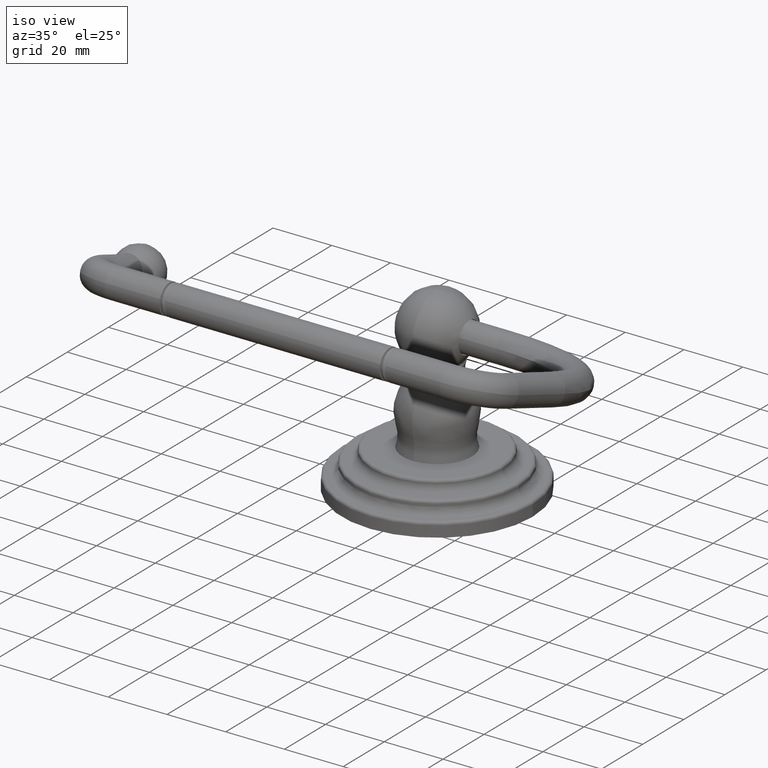
[diagram: clean part render]
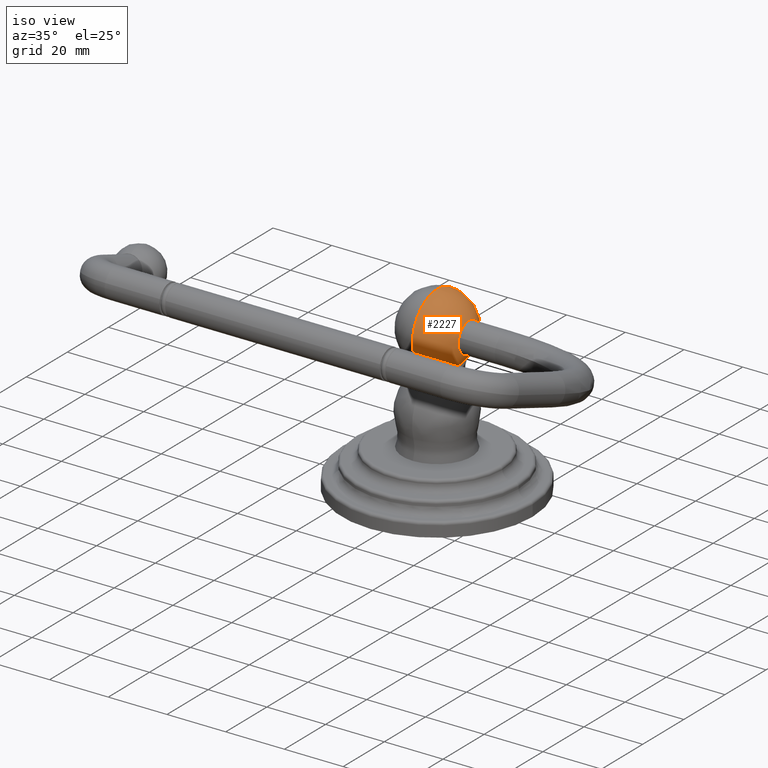
[diagram: same view with one face highlighted and labeled with its STEP entity id]
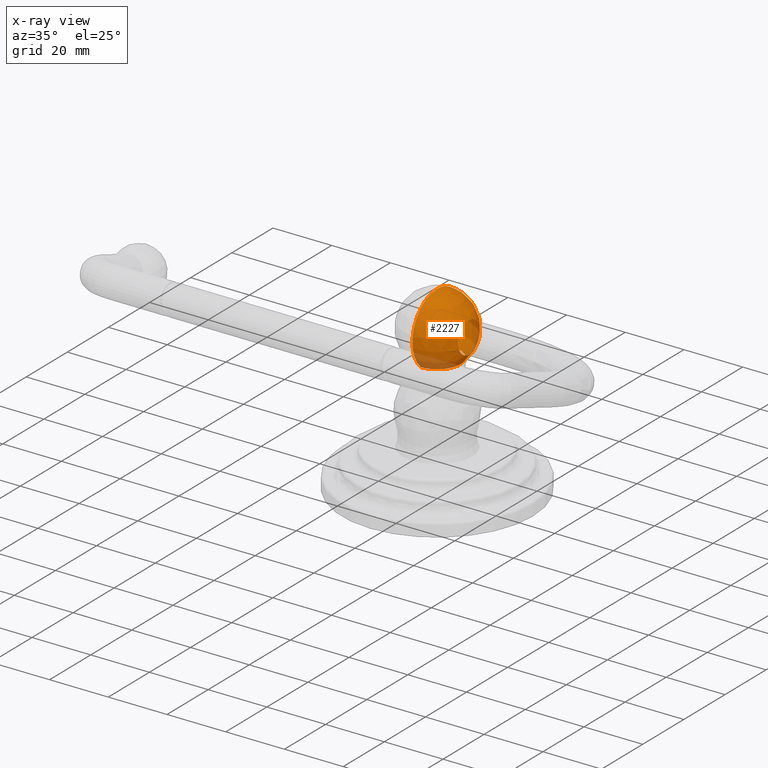
[diagram: x-ray of the same camera — body ghosted, the highlighted face saturated]
A machine part, iso view. The second image highlights one B-rep face of the part: STEP entity #2227.
The next image is the same camera in x-ray: the body ghosted, the highlighted face saturated — about 9% of this face is hidden behind the body in this view.
In plain terms, the highlighted spherical surface has radius 12.065 mm.
Its self-contained STEP definition (entity closure, byte-faithful):
#582=CARTESIAN_POINT('',(0.E0,0.E0,1.589710201657E0));
#583=DIRECTION('',(0.E0,0.E0,1.E0));
#584=DIRECTION('',(0.E0,-1.E0,0.E0));
#585=AXIS2_PLACEMENT_3D('',#582,#583,#584);
#590=CARTESIAN_POINT('',(4.277648302514E-1,0.E0,1.947E0));
#591=DIRECTION('',(-1.E0,0.E0,0.E0));
#592=DIRECTION('',(0.E0,0.E0,1.E0));
#593=AXIS2_PLACEMENT_3D('',#590,#591,#592);
#598=CARTESIAN_POINT('',(4.277648302514E-1,0.E0,1.947E0));
#599=DIRECTION('',(-1.E0,0.E0,0.E0));
#600=DIRECTION('',(0.E0,0.E0,-1.E0));
#601=AXIS2_PLACEMENT_3D('',#598,#599,#600);
#606=CARTESIAN_POINT('',(0.E0,0.E0,1.947E0));
#607=DIRECTION('',(-1.E0,0.E0,0.E0));
#608=DIRECTION('',(0.E0,-6.589473684211E-1,-7.521890491432E-1));
#609=AXIS2_PLACEMENT_3D('',#606,#607,#608);
#622=CARTESIAN_POINT('',(0.E0,0.E0,1.947E0));
#623=DIRECTION('',(1.E0,0.E0,0.E0));
#624=DIRECTION('',(0.E0,6.589473684211E-1,-7.521890491432E-1));
#625=AXIS2_PLACEMENT_3D('',#622,#623,#624);
#1433=CARTESIAN_POINT('',(4.277648302514E-1,0.E0,2.1535E0));
#1434=VERTEX_POINT('',#1433);
#1435=CARTESIAN_POINT('',(4.277648302514E-1,0.E0,1.7405E0));
#1436=VERTEX_POINT('',#1435);
#1443=CARTESIAN_POINT('',(0.E0,-3.13E-1,1.589710201657E0));
#1444=VERTEX_POINT('',#1443);
#1445=CARTESIAN_POINT('',(0.E0,0.E0,2.422E0));
#1446=VERTEX_POINT('',#1445);
#1453=CARTESIAN_POINT('',(0.E0,3.13E-1,1.589710201657E0));
#1454=VERTEX_POINT('',#1453);
#2209=CARTESIAN_POINT('',(0.E0,0.E0,1.947E0));
#2210=DIRECTION('',(0.E0,0.E0,1.E0));
#2211=DIRECTION('',(0.E0,-1.E0,0.E0));
#2212=AXIS2_PLACEMENT_3D('',#2209,#2210,#2211);
#2213=SPHERICAL_SURFACE('',#2212,4.75E-1);
#2215=ORIENTED_EDGE('',*,*,#2214,.T.);
#2217=ORIENTED_EDGE('',*,*,#2216,.F.);
#2218=ORIENTED_EDGE('',*,*,#2195,.F.);
#2219=EDGE_LOOP('',(#2215,#2217,#2218));
#2220=FACE_OUTER_BOUND('',#2219,.F.);
#2222=ORIENTED_EDGE('',*,*,#2221,.F.);
#2224=ORIENTED_EDGE('',*,*,#2223,.F.);
#2225=EDGE_LOOP('',(#2222,#2224));
#2226=FACE_BOUND('',#2225,.F.);
#586=CIRCLE('',#585,3.13E-1);
#594=CIRCLE('',#593,2.065E-1);
#602=CIRCLE('',#601,2.065E-1);
#610=CIRCLE('',#609,4.75E-1);
#626=CIRCLE('',#625,4.75E-1);
#2195=EDGE_CURVE('',#1444,#1454,#586,.T.);
#2214=EDGE_CURVE('',#1444,#1446,#610,.T.);
#2216=EDGE_CURVE('',#1454,#1446,#626,.T.);
#2221=EDGE_CURVE('',#1434,#1436,#594,.T.);
#2223=EDGE_CURVE('',#1436,#1434,#602,.T.);
#2227=ADVANCED_FACE('',(#2220,#2226),#2213,.T.);